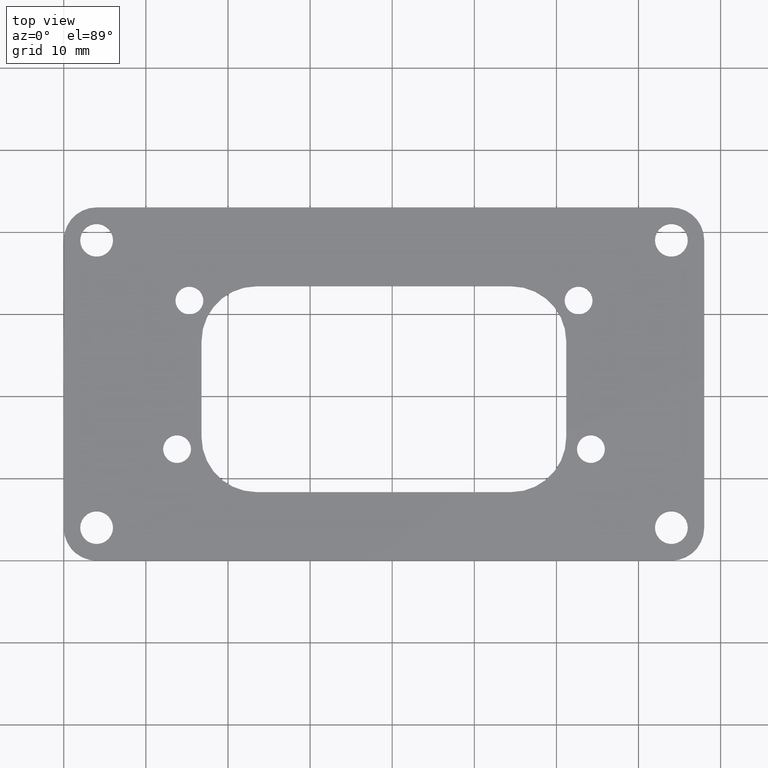
[diagram: clean part render]
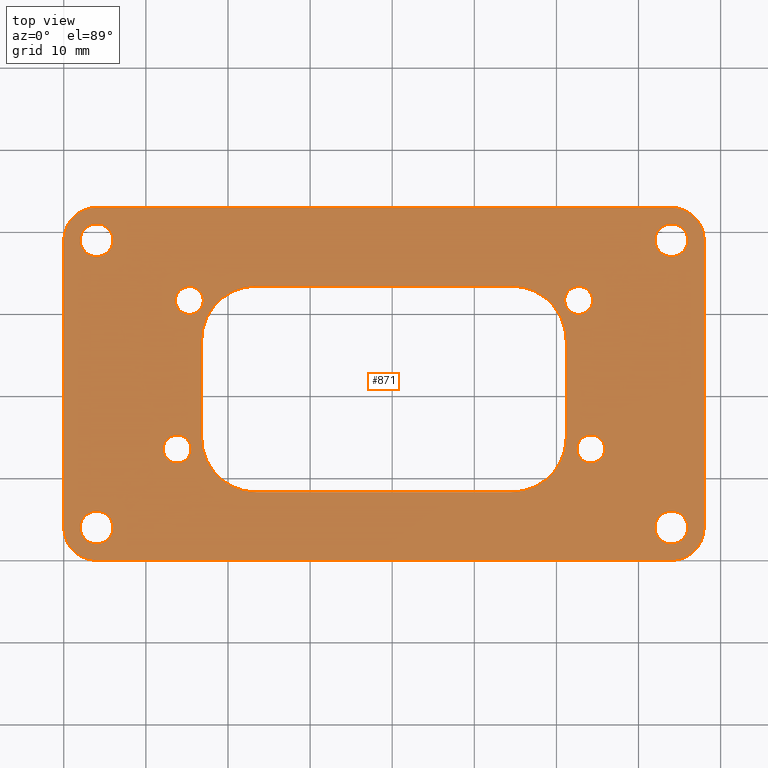
[diagram: same view with one face highlighted and labeled with its STEP entity id]
A machine part, top view. The second image highlights one B-rep face of the part: STEP entity #871.
In plain terms, the highlighted planar face has unit normal (-0, -0, -1).
Its self-contained STEP definition (entity closure, byte-faithful):
#52 = VERTEX_POINT('',#53);
#53 = CARTESIAN_POINT('',(-8.881784154862E-16,4.,1.60000442));
#59 = EDGE_CURVE('',#52,#60,#62,.T.);
#60 = VERTEX_POINT('',#61);
#61 = CARTESIAN_POINT('',(-8.881784197001E-16,39.,1.60000442));
#62 = LINE('',#63,#64);
#63 = CARTESIAN_POINT('',(0.,4.,1.60000442));
#64 = VECTOR('',#65,1.);
#65 = DIRECTION('',(0.,1.,0.));
#90 = EDGE_CURVE('',#60,#91,#93,.T.);
#91 = VERTEX_POINT('',#92);
#92 = CARTESIAN_POINT('',(4.,43.,1.60000442));
#93 = CIRCLE('',#94,4.001459203163);
#94 = AXIS2_PLACEMENT_3D('',#95,#96,#97);
#95 = CARTESIAN_POINT('',(4.001458937198,38.998541062802,1.60000442));
#96 = DIRECTION('',(0.,0.,-1.));
#97 = DIRECTION('',(-0.999999933533,3.646012926767E-04,0.));
#123 = EDGE_CURVE('',#91,#124,#126,.T.);
#124 = VERTEX_POINT('',#125);
#125 = CARTESIAN_POINT('',(74.,43.,1.60000442));
#126 = LINE('',#127,#128);
#127 = CARTESIAN_POINT('',(4.,43.,1.60000442));
#128 = VECTOR('',#129,1.);
#129 = DIRECTION('',(1.,0.,0.));
#154 = EDGE_CURVE('',#124,#155,#157,.T.);
#155 = VERTEX_POINT('',#156);
#156 = CARTESIAN_POINT('',(78.,39.,1.60000442));
#157 = CIRCLE('',#158,4.001459203163);
#158 = AXIS2_PLACEMENT_3D('',#159,#160,#161);
#159 = CARTESIAN_POINT('',(73.998541062802,38.998541062802,1.60000442));
#160 = DIRECTION('',(0.,0.,-1.));
#161 = DIRECTION('',(3.646012926767E-04,0.999999933533,0.));
#187 = EDGE_CURVE('',#155,#188,#190,.T.);
#188 = VERTEX_POINT('',#189);
#189 = CARTESIAN_POINT('',(78.,4.,1.60000442));
#190 = LINE('',#191,#192);
#191 = CARTESIAN_POINT('',(78.,39.,1.60000442));
#192 = VECTOR('',#193,1.);
#193 = DIRECTION('',(0.,-1.,0.));
#218 = EDGE_CURVE('',#188,#219,#221,.T.);
#219 = VERTEX_POINT('',#220);
#220 = CARTESIAN_POINT('',(74.,-1.33226762955E-15,1.60000442));
#221 = CIRCLE('',#222,4.001459203163);
#222 = AXIS2_PLACEMENT_3D('',#223,#224,#225);
#223 = CARTESIAN_POINT('',(73.998541062802,4.001458937198,1.60000442));
#224 = DIRECTION('',(0.,0.,-1.));
#225 = DIRECTION('',(0.999999933533,-3.646012926758E-04,0.));
#251 = EDGE_CURVE('',#219,#252,#254,.T.);
#252 = VERTEX_POINT('',#253);
#253 = CARTESIAN_POINT('',(4.,-4.440892098501E-16,1.60000442));
#254 = LINE('',#255,#256);
#255 = CARTESIAN_POINT('',(74.,0.,1.60000442));
#256 = VECTOR('',#257,1.);
#257 = DIRECTION('',(-1.,0.,0.));
#282 = EDGE_CURVE('',#252,#52,#283,.T.);
#283 = CIRCLE('',#284,4.001459203163);
#284 = AXIS2_PLACEMENT_3D('',#285,#286,#287);
#285 = CARTESIAN_POINT('',(4.001458937198,4.001458937198,1.60000442));
#286 = DIRECTION('',(0.,0.,-1.));
#287 = DIRECTION('',(-3.646012926771E-04,-0.999999933533,-0.));
#308 = VERTEX_POINT('',#309);
#309 = CARTESIAN_POINT('',(6.,4.,1.60000442));
#315 = EDGE_CURVE('',#308,#308,#316,.T.);
#316 = CIRCLE('',#317,2.);
#317 = AXIS2_PLACEMENT_3D('',#318,#319,#320);
#318 = CARTESIAN_POINT('',(4.,4.,1.60000442));
#319 = DIRECTION('',(0.,0.,1.));
#320 = DIRECTION('',(1.,0.,-0.));
#341 = VERTEX_POINT('',#342);
#342 = CARTESIAN_POINT('',(15.5,13.57,1.60000442));
#348 = EDGE_CURVE('',#341,#341,#349,.T.);
#349 = CIRCLE('',#350,1.7);
#350 = AXIS2_PLACEMENT_3D('',#351,#352,#353);
#351 = CARTESIAN_POINT('',(13.8,13.57,1.60000442));
#352 = DIRECTION('',(0.,0.,1.));
#353 = DIRECTION('',(1.,0.,-0.));
#374 = VERTEX_POINT('',#375);
#375 = CARTESIAN_POINT('',(6.,39.,1.60000442));
#381 = EDGE_CURVE('',#374,#374,#382,.T.);
#382 = CIRCLE('',#383,2.);
#383 = AXIS2_PLACEMENT_3D('',#384,#385,#386);
#384 = CARTESIAN_POINT('',(4.,39.,1.60000442));
#385 = DIRECTION('',(0.,0.,1.));
#386 = DIRECTION('',(1.,0.,-0.));
#407 = VERTEX_POINT('',#408);
#408 = CARTESIAN_POINT('',(17.,31.669,1.60000442));
#414 = EDGE_CURVE('',#407,#407,#415,.T.);
#415 = CIRCLE('',#416,1.7);
#416 = AXIS2_PLACEMENT_3D('',#417,#418,#419);
#417 = CARTESIAN_POINT('',(15.3,31.669,1.60000442));
#418 = DIRECTION('',(0.,0.,1.));
#419 = DIRECTION('',(1.,0.,-0.));
#440 = VERTEX_POINT('',#441);
#441 = CARTESIAN_POINT('',(23.475,8.319,1.60000442));
#447 = EDGE_CURVE('',#440,#448,#450,.T.);
#448 = VERTEX_POINT('',#449);
#449 = CARTESIAN_POINT('',(16.775,15.019,1.60000442));
#450 = CIRCLE('',#451,6.698687448502);
#451 = AXIS2_PLACEMENT_3D('',#452,#453,#454);
#452 = CARTESIAN_POINT('',(23.473687319885,15.017687319885,1.60000442));
#453 = DIRECTION('',(0.,0.,-1.));
#454 = DIRECTION('',(1.959607946136E-04,-0.9999999808,0.));
#482 = VERTEX_POINT('',#483);
#483 = CARTESIAN_POINT('',(54.5,8.319,1.60000442));
#489 = EDGE_CURVE('',#482,#440,#490,.T.);
#490 = LINE('',#491,#492);
#491 = CARTESIAN_POINT('',(54.5,8.319,1.60000442));
#492 = VECTOR('',#493,1.);
#493 = DIRECTION('',(-1.,0.,0.));
#513 = VERTEX_POINT('',#514);
#514 = CARTESIAN_POINT('',(61.2,15.019,1.60000442));
#520 = EDGE_CURVE('',#513,#482,#521,.T.);
#521 = CIRCLE('',#522,6.698687448502);
#522 = AXIS2_PLACEMENT_3D('',#523,#524,#525);
#523 = CARTESIAN_POINT('',(54.501312680115,15.017687319885,1.60000442));
#524 = DIRECTION('',(0.,0.,-1.));
#525 = DIRECTION('',(0.9999999808,1.959607946123E-04,0.));
#546 = VERTEX_POINT('',#547);
#547 = CARTESIAN_POINT('',(61.2,26.72,1.60000442));
#553 = EDGE_CURVE('',#546,#513,#554,.T.);
#554 = LINE('',#555,#556);
#555 = CARTESIAN_POINT('',(61.2,26.72,1.60000442));
#556 = VECTOR('',#557,1.);
#557 = DIRECTION('',(0.,-1.,0.));
#577 = VERTEX_POINT('',#578);
#578 = CARTESIAN_POINT('',(54.5,33.42,1.60000442));
#584 = EDGE_CURVE('',#577,#546,#585,.T.);
#585 = CIRCLE('',#586,6.698687448502);
#586 = AXIS2_PLACEMENT_3D('',#587,#588,#589);
#587 = CARTESIAN_POINT('',(54.501312680115,26.721312680115,1.60000442));
#588 = DIRECTION('',(0.,0.,-1.));
#589 = DIRECTION('',(-1.959607946115E-04,0.9999999808,0.));
#610 = VERTEX_POINT('',#611);
#611 = CARTESIAN_POINT('',(23.475,33.42,1.60000442));
#617 = EDGE_CURVE('',#610,#577,#618,.T.);
#618 = LINE('',#619,#620);
#619 = CARTESIAN_POINT('',(23.475,33.42,1.60000442));
#620 = VECTOR('',#621,1.);
#621 = DIRECTION('',(1.,0.,0.));
#641 = VERTEX_POINT('',#642);
#642 = CARTESIAN_POINT('',(16.775,26.72,1.60000442));
#648 = EDGE_CURVE('',#641,#610,#649,.T.);
#649 = CIRCLE('',#650,6.698687448502);
#650 = AXIS2_PLACEMENT_3D('',#651,#652,#653);
#651 = CARTESIAN_POINT('',(23.473687319885,26.721312680115,1.60000442));
#652 = DIRECTION('',(0.,0.,-1.));
#653 = DIRECTION('',(-0.9999999808,-1.959607946125E-04,-0.));
#672 = EDGE_CURVE('',#448,#641,#673,.T.);
#673 = LINE('',#674,#675);
#674 = CARTESIAN_POINT('',(16.775,15.019,1.60000442));
#675 = VECTOR('',#676,1.);
#676 = DIRECTION('',(0.,1.,0.));
#696 = VERTEX_POINT('',#697);
#697 = CARTESIAN_POINT('',(76.,4.,1.60000442));
#703 = EDGE_CURVE('',#696,#696,#704,.T.);
#704 = CIRCLE('',#705,2.);
#705 = AXIS2_PLACEMENT_3D('',#706,#707,#708);
#706 = CARTESIAN_POINT('',(74.,4.,1.60000442));
#707 = DIRECTION('',(0.,0.,1.));
#708 = DIRECTION('',(1.,0.,-0.));
#729 = VERTEX_POINT('',#730);
#730 = CARTESIAN_POINT('',(64.4,31.669,1.60000442));
#736 = EDGE_CURVE('',#729,#729,#737,.T.);
#737 = CIRCLE('',#738,1.7);
#738 = AXIS2_PLACEMENT_3D('',#739,#740,#741);
#739 = CARTESIAN_POINT('',(62.7,31.669,1.60000442));
#740 = DIRECTION('',(0.,0.,1.));
#741 = DIRECTION('',(1.,0.,-0.));
#762 = VERTEX_POINT('',#763);
#763 = CARTESIAN_POINT('',(65.9,13.57,1.60000442));
#769 = EDGE_CURVE('',#762,#762,#770,.T.);
#770 = CIRCLE('',#771,1.7);
#771 = AXIS2_PLACEMENT_3D('',#772,#773,#774);
#772 = CARTESIAN_POINT('',(64.2,13.57,1.60000442));
#773 = DIRECTION('',(0.,0.,1.));
#774 = DIRECTION('',(1.,0.,-0.));
#795 = VERTEX_POINT('',#796);
#796 = CARTESIAN_POINT('',(76.,39.,1.60000442));
#802 = EDGE_CURVE('',#795,#795,#803,.T.);
#803 = CIRCLE('',#804,2.);
#804 = AXIS2_PLACEMENT_3D('',#805,#806,#807);
#805 = CARTESIAN_POINT('',(74.,39.,1.60000442));
#806 = DIRECTION('',(0.,0.,1.));
#807 = DIRECTION('',(1.,0.,-0.));
#871 = ADVANCED_FACE('',(#872,#882,#885,#888,#891,#894,#904,#907,#910,
    #913),#916,.F.);
#872 = FACE_BOUND('',#873,.F.);
#873 = EDGE_LOOP('',(#874,#875,#876,#877,#878,#879,#880,#881));
#874 = ORIENTED_EDGE('',*,*,#59,.T.);
#875 = ORIENTED_EDGE('',*,*,#90,.T.);
#876 = ORIENTED_EDGE('',*,*,#123,.T.);
#877 = ORIENTED_EDGE('',*,*,#154,.T.);
#878 = ORIENTED_EDGE('',*,*,#187,.T.);
#879 = ORIENTED_EDGE('',*,*,#218,.T.);
#880 = ORIENTED_EDGE('',*,*,#251,.T.);
#881 = ORIENTED_EDGE('',*,*,#282,.T.);
#882 = FACE_BOUND('',#883,.F.);
#883 = EDGE_LOOP('',(#884));
#884 = ORIENTED_EDGE('',*,*,#315,.T.);
#885 = FACE_BOUND('',#886,.F.);
#886 = EDGE_LOOP('',(#887));
#887 = ORIENTED_EDGE('',*,*,#348,.T.);
#888 = FACE_BOUND('',#889,.F.);
#889 = EDGE_LOOP('',(#890));
#890 = ORIENTED_EDGE('',*,*,#381,.T.);
#891 = FACE_BOUND('',#892,.F.);
#892 = EDGE_LOOP('',(#893));
#893 = ORIENTED_EDGE('',*,*,#414,.T.);
#894 = FACE_BOUND('',#895,.F.);
#895 = EDGE_LOOP('',(#896,#897,#898,#899,#900,#901,#902,#903));
#896 = ORIENTED_EDGE('',*,*,#447,.F.);
#897 = ORIENTED_EDGE('',*,*,#489,.F.);
#898 = ORIENTED_EDGE('',*,*,#520,.F.);
#899 = ORIENTED_EDGE('',*,*,#553,.F.);
#900 = ORIENTED_EDGE('',*,*,#584,.F.);
#901 = ORIENTED_EDGE('',*,*,#617,.F.);
#902 = ORIENTED_EDGE('',*,*,#648,.F.);
#903 = ORIENTED_EDGE('',*,*,#672,.F.);
#904 = FACE_BOUND('',#905,.F.);
#905 = EDGE_LOOP('',(#906));
#906 = ORIENTED_EDGE('',*,*,#703,.T.);
#907 = FACE_BOUND('',#908,.F.);
#908 = EDGE_LOOP('',(#909));
#909 = ORIENTED_EDGE('',*,*,#736,.T.);
#910 = FACE_BOUND('',#911,.F.);
#911 = EDGE_LOOP('',(#912));
#912 = ORIENTED_EDGE('',*,*,#769,.T.);
#913 = FACE_BOUND('',#914,.F.);
#914 = EDGE_LOOP('',(#915));
#915 = ORIENTED_EDGE('',*,*,#802,.T.);
#916 = PLANE('',#917);
#917 = AXIS2_PLACEMENT_3D('',#918,#919,#920);
#918 = CARTESIAN_POINT('',(39.,21.5,1.60000442));
#919 = DIRECTION('',(-0.,-0.,-1.));
#920 = DIRECTION('',(-1.,0.,0.));